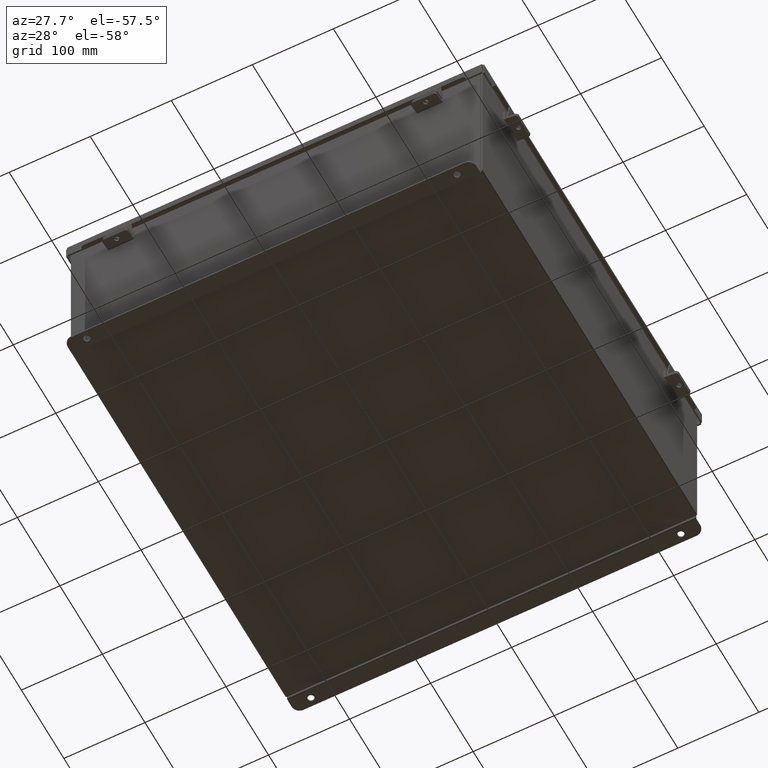
[diagram: clean part render]
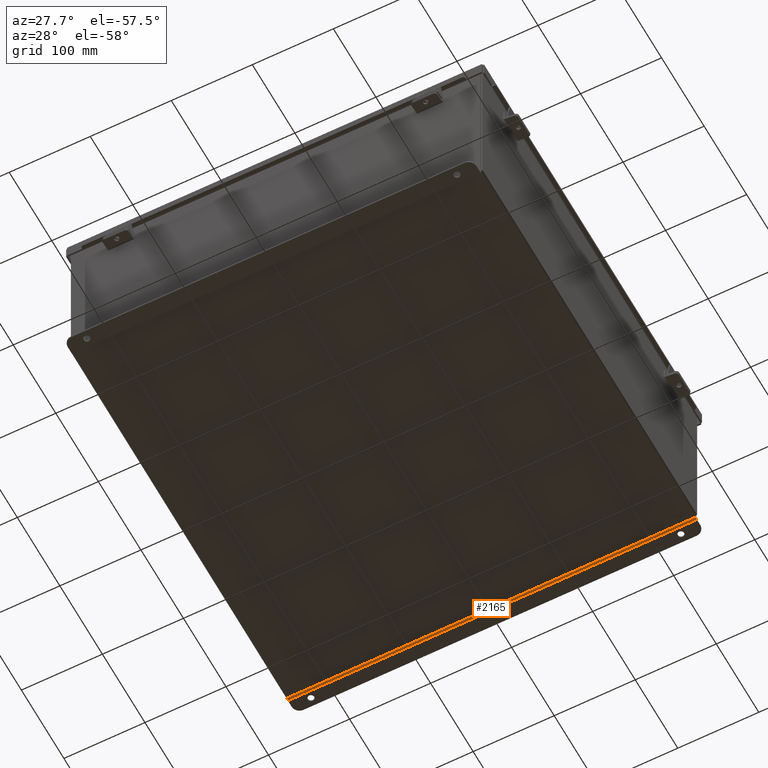
[diagram: same view with one face highlighted and labeled with its STEP entity id]
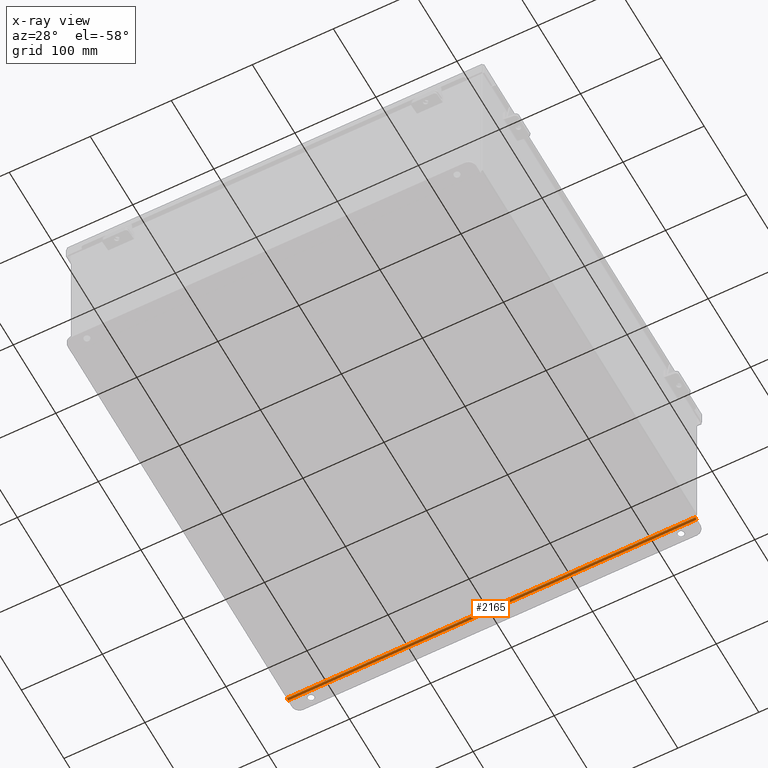
[diagram: x-ray of the same camera — body ghosted, the highlighted face saturated]
A machine part, auxiliary view. The second image highlights one B-rep face of the part: STEP entity #2165.
The next image is the same camera in x-ray: the body ghosted, the highlighted face saturated — about 0% of this face is hidden behind the body in this view.
In plain terms, the highlighted cylindrical surface (edge-blend (fillet) strip) has radius 2.2276 mm, axis along (-1, -0, 0).
Its self-contained STEP definition (entity closure, byte-faithful):
#226 = VERTEX_POINT ( 'NONE', #2368 ) ;
#979 = CARTESIAN_POINT ( 'NONE',  ( 9.925299999999998200, -0.07470000000000015500, -4.099300000000000400 ) ) ;
#1478 = EDGE_CURVE ( 'NONE', #4455, #7540, #1604, .T. ) ;
#1527 = CYLINDRICAL_SURFACE ( 'NONE', #3815, 0.08770000000000026400 ) ;
#1568 = CIRCLE ( 'NONE', #9284, 0.08770000000000009700 ) ;
#1604 = LINE ( 'NONE', #2741, #8254 ) ;
#1625 = DIRECTION ( 'NONE',  ( 1.000000000000000000, 2.752408485047568600E-017, -1.019132772786892100E-031 ) ) ;
#1787 = EDGE_LOOP ( 'NONE', ( #8677, #9608, #6877, #2153 ) ) ;
#2130 = EDGE_CURVE ( 'NONE', #4455, #226, #5235, .T. ) ;
#2153 = ORIENTED_EDGE ( 'NONE', *, *, #6212, .F. ) ;
#2165 = ADVANCED_FACE ( 'NONE', ( #4400 ), #1527, .T. ) ;
#2368 = CARTESIAN_POINT ( 'NONE',  ( -9.925300000000000000, -0.07470000000000015500, -4.099300000000000400 ) ) ;
#2674 = CARTESIAN_POINT ( 'NONE',  ( 9.925299999999998200, 0.01300000000000010700, -4.099300000000000400 ) ) ;
#2741 = CARTESIAN_POINT ( 'NONE',  ( 9.925299999999998200, 0.01300000000000010700, -4.187000000000001200 ) ) ;
#2797 = DIRECTION ( 'NONE',  ( 0.0000000000000000000, -1.000000000000000000, 0.0000000000000000000 ) ) ;
#3027 = CARTESIAN_POINT ( 'NONE',  ( -9.925300000000000000, 0.01300000000000010700, -4.187000000000001200 ) ) ;
#3504 = DIRECTION ( 'NONE',  ( 1.000000000000000000, 8.208677865577646300E-017, -0.0000000000000000000 ) ) ;
#3815 = AXIS2_PLACEMENT_3D ( 'NONE', #8215, #5792, #9300 ) ;
#4248 = AXIS2_PLACEMENT_3D ( 'NONE', #5841, #5251, #2797 ) ;
#4400 = FACE_OUTER_BOUND ( 'NONE', #1787, .T. ) ;
#4455 = VERTEX_POINT ( 'NONE', #3027 ) ;
#5013 = LINE ( 'NONE', #9182, #7225 ) ;
#5095 = EDGE_CURVE ( 'NONE', #226, #5490, #5013, .T. ) ;
#5235 = CIRCLE ( 'NONE', #4248, 0.08770000000000009700 ) ;
#5251 = DIRECTION ( 'NONE',  ( -1.000000000000000000, -8.208677865577646300E-017, 0.0000000000000000000 ) ) ;
#5490 = VERTEX_POINT ( 'NONE', #979 ) ;
#5561 = DIRECTION ( 'NONE',  ( 0.0000000000000000000, -1.000000000000000000, 0.0000000000000000000 ) ) ;
#5792 = DIRECTION ( 'NONE',  ( -1.000000000000000000, -8.208677865577646300E-017, 0.0000000000000000000 ) ) ;
#5837 = CARTESIAN_POINT ( 'NONE',  ( 9.925299999999998200, 0.01300000000000010700, -4.187000000000001200 ) ) ;
#5841 = CARTESIAN_POINT ( 'NONE',  ( -9.925300000000000000, 0.01299999999999792100, -4.099300000000000400 ) ) ;
#6212 = EDGE_CURVE ( 'NONE', #5490, #7540, #1568, .T. ) ;
#6877 = ORIENTED_EDGE ( 'NONE', *, *, #1478, .T. ) ;
#7225 = VECTOR ( 'NONE', #9715, 39.37007874015748100 ) ;
#7540 = VERTEX_POINT ( 'NONE', #5837 ) ;
#8215 = CARTESIAN_POINT ( 'NONE',  ( -9.925300000000001800, 0.01299999999999792100, -4.099300000000000400 ) ) ;
#8254 = VECTOR ( 'NONE', #1625, 39.37007874015748100 ) ;
#8677 = ORIENTED_EDGE ( 'NONE', *, *, #5095, .F. ) ;
#9182 = CARTESIAN_POINT ( 'NONE',  ( -9.925300000000001800, -0.07470000000000015500, -4.099300000000000400 ) ) ;
#9284 = AXIS2_PLACEMENT_3D ( 'NONE', #2674, #3504, #5561 ) ;
#9300 = DIRECTION ( 'NONE',  ( 0.0000000000000000000, -3.699053013085864000E-015, -1.000000000000000000 ) ) ;
#9608 = ORIENTED_EDGE ( 'NONE', *, *, #2130, .F. ) ;
#9715 = DIRECTION ( 'NONE',  ( 1.000000000000000000, 8.208677865577646300E-017, -0.0000000000000000000 ) ) ;